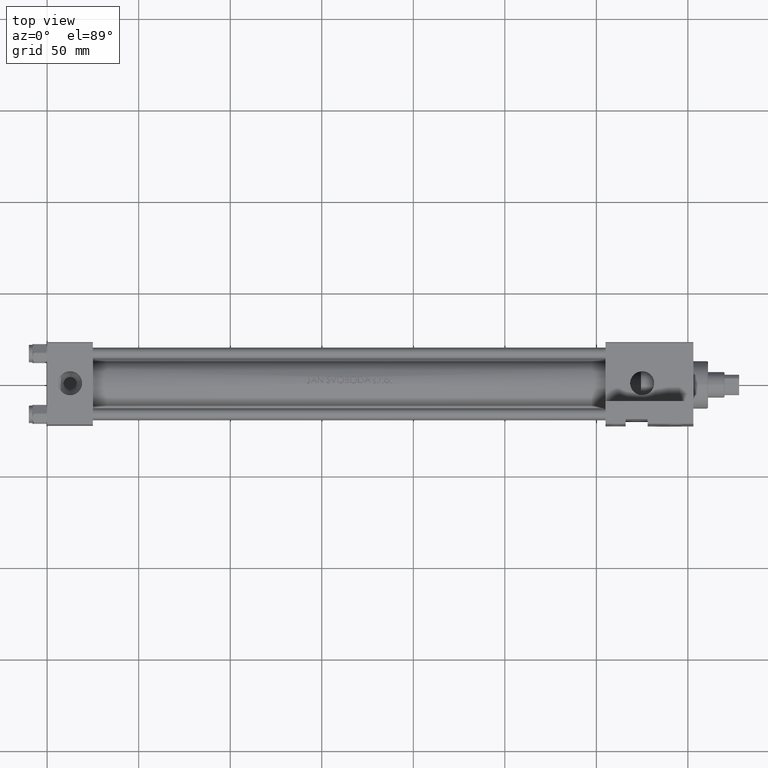
[diagram: clean part render]
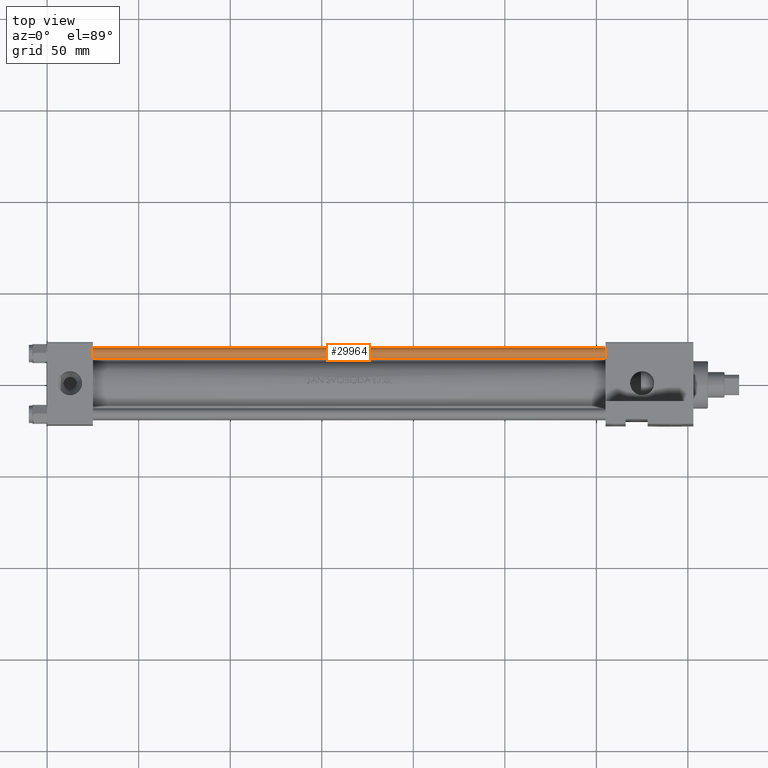
[diagram: same view with one face highlighted and labeled with its STEP entity id]
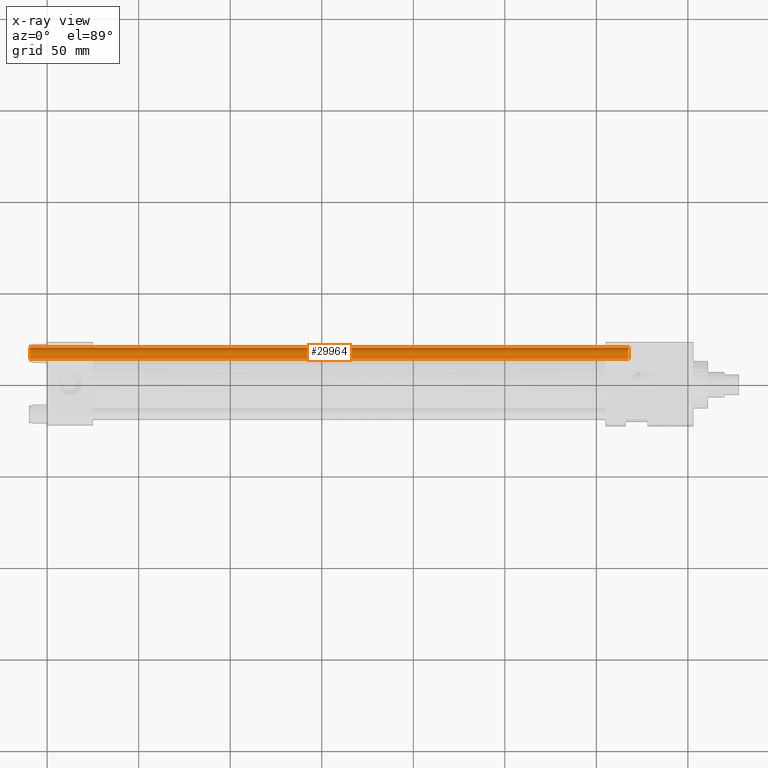
[diagram: x-ray of the same camera — body ghosted, the highlighted face saturated]
A machine part, top view. The second image highlights one B-rep face of the part: STEP entity #29964.
The next image is the same camera in x-ray: the body ghosted, the highlighted face saturated — about 0% of this face is hidden behind the body in this view.
In plain terms, the highlighted cylindrical surface (edge-blend (fillet) strip) has radius 3 mm, axis along (1, -0, 0).
Its self-contained STEP definition (entity closure, byte-faithful):
#114 = VERTEX_POINT ( 'NONE', #1191 ) ;
#123 = VERTEX_POINT ( 'NONE', #42304 ) ;
#1191 = CARTESIAN_POINT ( 'NONE',  ( 3.000000000000000444, 3.673940397442060361E-16, 327.5000000000000000 ) ) ;
#1241 = AXIS2_PLACEMENT_3D ( 'NONE', #19879, #4297, #30953 ) ;
#1647 = EDGE_LOOP ( 'NONE', ( #46823, #43002, #34790, #3114 ) ) ;
#3114 = ORIENTED_EDGE ( 'NONE', *, *, #13308, .T. ) ;
#4297 = DIRECTION ( 'NONE',  ( -0.000000000000000000, -0.000000000000000000, -1.000000000000000000 ) ) ;
#9525 = EDGE_CURVE ( 'NONE', #43402, #123, #36363, .T. ) ;
#10111 = VERTEX_POINT ( 'NONE', #35429 ) ;
#13308 = EDGE_CURVE ( 'NONE', #123, #10111, #14006, .T. ) ;
#14006 = CIRCLE ( 'NONE', #26819, 3.000000000000000444 ) ;
#14180 = CYLINDRICAL_SURFACE ( 'NONE', #1241, 3.000000000000000444 ) ;
#14759 = VECTOR ( 'NONE', #32560, 1000.000000000000000 ) ;
#15236 = EDGE_CURVE ( 'NONE', #114, #10111, #48391, .T. ) ;
#17770 = CARTESIAN_POINT ( 'NONE',  ( 3.000000000000000444, 3.673940397442060361E-16, 328.0000000000000000 ) ) ;
#19879 = CARTESIAN_POINT ( 'NONE',  ( 0.000000000000000000, 0.000000000000000000, 328.0000000000000000 ) ) ;
#26819 = AXIS2_PLACEMENT_3D ( 'NONE', #29509, #37289, #44053 ) ;
#29414 = DIRECTION ( 'NONE',  ( 0.000000000000000000, 0.000000000000000000, -1.000000000000000000 ) ) ;
#29509 = CARTESIAN_POINT ( 'NONE',  ( 0.000000000000000000, 0.000000000000000000, 0.5000000000000559552 ) ) ;
#29964 = ADVANCED_FACE ( 'NONE', ( #48564 ), #14180, .T. ) ;
#30953 = DIRECTION ( 'NONE',  ( -1.000000000000000000, 0.000000000000000000, 0.000000000000000000 ) ) ;
#32344 = DIRECTION ( 'NONE',  ( -0.000000000000000000, -0.000000000000000000, -1.000000000000000000 ) ) ;
#32560 = DIRECTION ( 'NONE',  ( -0.000000000000000000, -0.000000000000000000, -1.000000000000000000 ) ) ;
#34790 = ORIENTED_EDGE ( 'NONE', *, *, #9525, .T. ) ;
#35429 = CARTESIAN_POINT ( 'NONE',  ( 3.000000000000000444, 3.673940397442060361E-16, 0.5000000000000559552 ) ) ;
#36281 = CARTESIAN_POINT ( 'NONE',  ( -3.000000000000000444, 0.000000000000000000, 327.5000000000000000 ) ) ;
#36363 = LINE ( 'NONE', #39857, #37126 ) ;
#37126 = VECTOR ( 'NONE', #32344, 1000.000000000000000 ) ;
#37289 = DIRECTION ( 'NONE',  ( -0.000000000000000000, -0.000000000000000000, 1.000000000000000000 ) ) ;
#39857 = CARTESIAN_POINT ( 'NONE',  ( -3.000000000000000444, 0.000000000000000000, 328.0000000000000000 ) ) ;
#42304 = CARTESIAN_POINT ( 'NONE',  ( -3.000000000000000444, 0.000000000000000000, 0.5000000000000559552 ) ) ;
#42562 = AXIS2_PLACEMENT_3D ( 'NONE', #45226, #29414, #48750 ) ;
#43002 = ORIENTED_EDGE ( 'NONE', *, *, #46600, .T. ) ;
#43402 = VERTEX_POINT ( 'NONE', #36281 ) ;
#44053 = DIRECTION ( 'NONE',  ( 1.000000000000000000, 0.000000000000000000, 0.000000000000000000 ) ) ;
#45226 = CARTESIAN_POINT ( 'NONE',  ( 0.000000000000000000, 0.000000000000000000, 327.5000000000000000 ) ) ;
#46577 = CIRCLE ( 'NONE', #42562, 3.000000000000000444 ) ;
#46600 = EDGE_CURVE ( 'NONE', #114, #43402, #46577, .T. ) ;
#46823 = ORIENTED_EDGE ( 'NONE', *, *, #15236, .F. ) ;
#48391 = LINE ( 'NONE', #17770, #14759 ) ;
#48564 = FACE_OUTER_BOUND ( 'NONE', #1647, .T. ) ;
#48750 = DIRECTION ( 'NONE',  ( 1.000000000000000000, 0.000000000000000000, 0.000000000000000000 ) ) ;